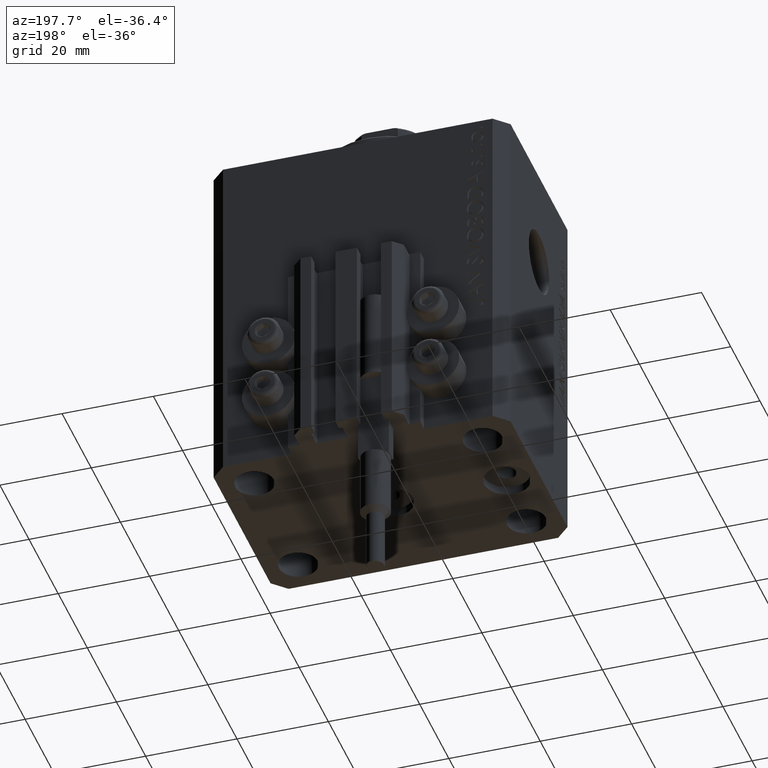
[diagram: clean part render]
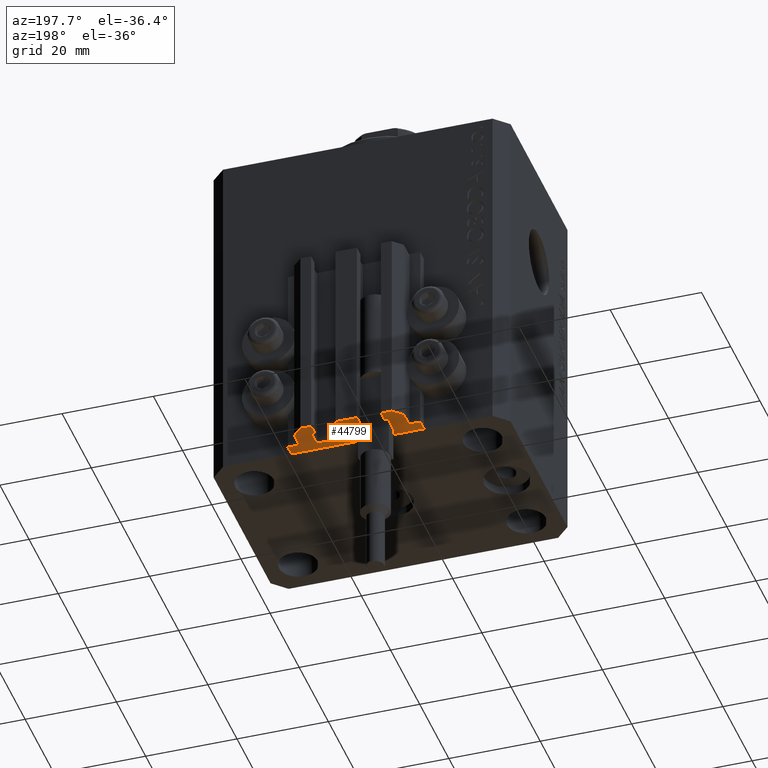
[diagram: same view with one face highlighted and labeled with its STEP entity id]
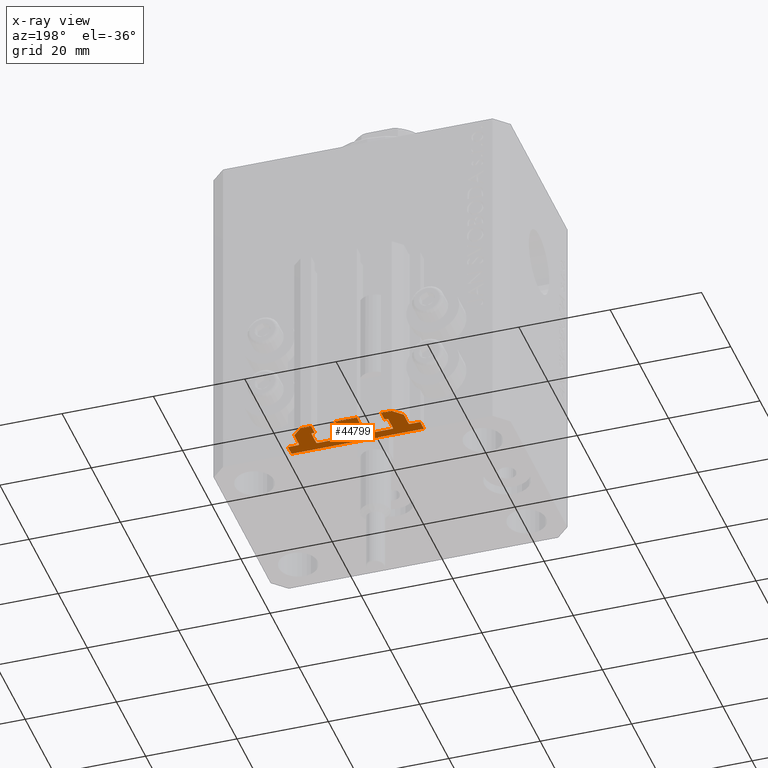
[diagram: x-ray of the same camera — body ghosted, the highlighted face saturated]
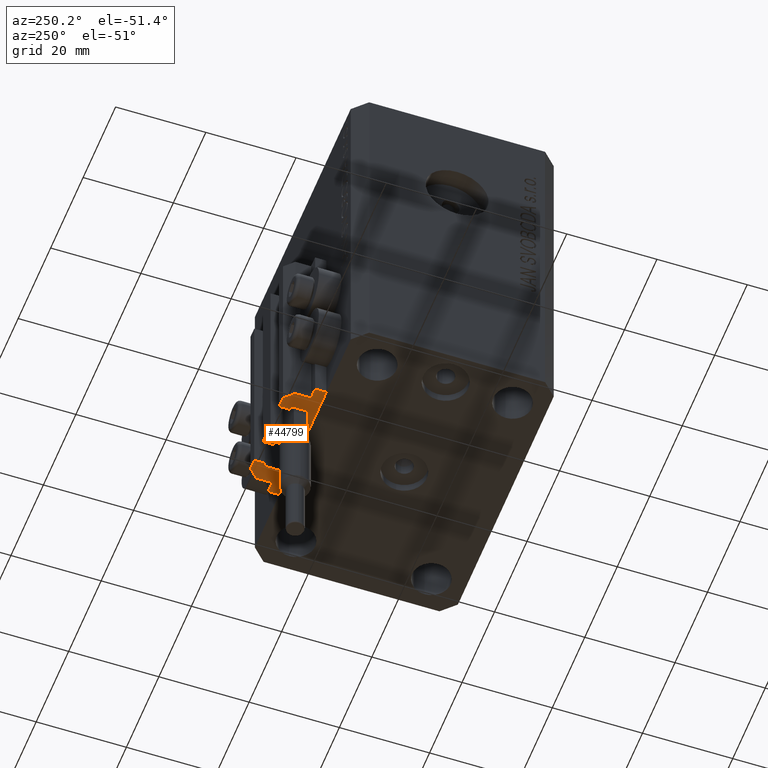
[diagram: same view with one face highlighted and labeled with its STEP entity id]
A machine part, auxiliary view. The second image highlights one B-rep face of the part: STEP entity #44799.
The next image is the same camera in x-ray: the body ghosted, the highlighted face saturated — about 0% of this face is hidden behind the body in this view.
A second angle (auxiliary view) of the same face is appended — the face is thin or edge-on in the first view.
In plain terms, the highlighted planar face has unit normal (0, 0, 1).
Its self-contained STEP definition (entity closure, byte-faithful):
#569 = ORIENTED_EDGE ( 'NONE', *, *, #10904, .F. ) ;
#761 = DIRECTION ( 'NONE',  ( 0.000000000000000000, 1.000000000000000000, 0.000000000000000000 ) ) ;
#1053 = VERTEX_POINT ( 'NONE', #47418 ) ;
#1470 = CARTESIAN_POINT ( 'NONE',  ( -7.650000000000000355, 30.49999999999948486, -77.00000000000000000 ) ) ;
#1555 = ORIENTED_EDGE ( 'NONE', *, *, #3538, .F. ) ;
#1664 = DIRECTION ( 'NONE',  ( 0.000000000000000000, 0.000000000000000000, 1.000000000000000000 ) ) ;
#1700 = DIRECTION ( 'NONE',  ( 1.000000000000000000, 0.000000000000000000, 0.000000000000000000 ) ) ;
#1826 = VERTEX_POINT ( 'NONE', #32672 ) ;
#1831 = LINE ( 'NONE', #28430, #33499 ) ;
#1833 = LINE ( 'NONE', #38700, #35772 ) ;
#1890 = VERTEX_POINT ( 'NONE', #14334 ) ;
#2008 = DIRECTION ( 'NONE',  ( 1.000000000000000000, 0.000000000000000000, 0.000000000000000000 ) ) ;
#2083 = CARTESIAN_POINT ( 'NONE',  ( 8.200000000000001066, 24.49999999999949196, -77.00000000000000000 ) ) ;
#2554 = VECTOR ( 'NONE', #16514, 1000.000000000000000 ) ;
#2609 = CARTESIAN_POINT ( 'NONE',  ( 7.649999999999995914, 28.09999999999950404, -77.00000000000000000 ) ) ;
#2802 = VERTEX_POINT ( 'NONE', #35378 ) ;
#2905 = CIRCLE ( 'NONE', #35664, 0.1999999999999994282 ) ;
#3199 = EDGE_CURVE ( 'NONE', #41428, #42121, #28231, .T. ) ;
#3223 = VECTOR ( 'NONE', #34340, 1000.000000000000000 ) ;
#3253 = LINE ( 'NONE', #7649, #24905 ) ;
#3466 = CARTESIAN_POINT ( 'NONE',  ( -1.600000000000000533, 27.89999999999950120, -77.00000000000000000 ) ) ;
#3538 = EDGE_CURVE ( 'NONE', #17357, #43377, #42797, .T. ) ;
#3565 = VECTOR ( 'NONE', #9985, 1000.000000000000000 ) ;
#3675 = CARTESIAN_POINT ( 'NONE',  ( -14.50000000000000000, 22.49999999999949907, -77.00000000000000000 ) ) ;
#3790 = DIRECTION ( 'NONE',  ( -1.000000000000000000, 0.000000000000000000, 0.000000000000000000 ) ) ;
#3873 = EDGE_CURVE ( 'NONE', #3904, #43377, #27635, .T. ) ;
#3904 = VERTEX_POINT ( 'NONE', #31258 ) ;
#3962 = CARTESIAN_POINT ( 'NONE',  ( -8.399999999999998579, 24.69999999999949480, -77.00000000000000000 ) ) ;
#4094 = VECTOR ( 'NONE', #37602, 1000.000000000000000 ) ;
#4220 = CIRCLE ( 'NONE', #10444, 0.1999999999999987899 ) ;
#4247 = CARTESIAN_POINT ( 'NONE',  ( -1.800000000000000933, 24.49999999999949551, -77.00000000000000000 ) ) ;
#4640 = LINE ( 'NONE', #8544, #4094 ) ;
#4773 = LINE ( 'NONE', #19889, #23924 ) ;
#5166 = ORIENTED_EDGE ( 'NONE', *, *, #11910, .T. ) ;
#5237 = CARTESIAN_POINT ( 'NONE',  ( 1.600000000000000533, 24.69999999999949480, -77.00000000000000000 ) ) ;
#5685 = CIRCLE ( 'NONE', #25186, 0.1999999999999987899 ) ;
#5976 = CARTESIAN_POINT ( 'NONE',  ( -1.600000000000003197, 27.89999999999950120, -77.00000000000000000 ) ) ;
#6010 = DIRECTION ( 'NONE',  ( 0.000000000000000000, 1.000000000000000000, 0.000000000000000000 ) ) ;
#6064 = VERTEX_POINT ( 'NONE', #37822 ) ;
#6265 = ORIENTED_EDGE ( 'NONE', *, *, #33480, .F. ) ;
#6410 = VERTEX_POINT ( 'NONE', #7983 ) ;
#6447 = VERTEX_POINT ( 'NONE', #2083 ) ;
#6482 = CARTESIAN_POINT ( 'NONE',  ( 2.349999999999999645, 28.09999999999950049, -77.00000000000000000 ) ) ;
#6522 = VECTOR ( 'NONE', #20786, 1000.000000000000000 ) ;
#6620 = CARTESIAN_POINT ( 'NONE',  ( 1.800000000000000933, 24.49999999999949196, -77.00000000000000000 ) ) ;
#7203 = LINE ( 'NONE', #15500, #39534 ) ;
#7294 = ORIENTED_EDGE ( 'NONE', *, *, #31642, .F. ) ;
#7354 = VECTOR ( 'NONE', #46453, 1000.000000000000000 ) ;
#7649 = CARTESIAN_POINT ( 'NONE',  ( 9.999999999999994671, 30.49999999999949551, -77.00000000000000000 ) ) ;
#7978 = VECTOR ( 'NONE', #45122, 1000.000000000000000 ) ;
#7983 = CARTESIAN_POINT ( 'NONE',  ( 14.49999999999999645, 22.49999999999949907, -77.00000000000000000 ) ) ;
#8236 = EDGE_CURVE ( 'NONE', #41428, #23066, #16855, .T. ) ;
#8544 = CARTESIAN_POINT ( 'NONE',  ( -2.350000000000003197, 28.09999999999950049, -77.00000000000000000 ) ) ;
#8549 = ORIENTED_EDGE ( 'NONE', *, *, #46766, .F. ) ;
#8776 = VERTEX_POINT ( 'NONE', #12195 ) ;
#8823 = ORIENTED_EDGE ( 'NONE', *, *, #45343, .F. ) ;
#8950 = CARTESIAN_POINT ( 'NONE',  ( 8.400000000000000355, 27.89999999999950475, -77.00000000000000000 ) ) ;
#9064 = ORIENTED_EDGE ( 'NONE', *, *, #32771, .F. ) ;
#9142 = CARTESIAN_POINT ( 'NONE',  ( -2.350000000000003197, 30.49999999999949907, -77.00000000000000000 ) ) ;
#9211 = EDGE_CURVE ( 'NONE', #24638, #28526, #10154, .T. ) ;
#9574 = CARTESIAN_POINT ( 'NONE',  ( 1.800000000000000933, 24.69999999999949480, -77.00000000000000000 ) ) ;
#9582 = DIRECTION ( 'NONE',  ( 0.000000000000000000, 0.000000000000000000, 1.000000000000000000 ) ) ;
#9749 = ORIENTED_EDGE ( 'NONE', *, *, #19848, .F. ) ;
#9985 = DIRECTION ( 'NONE',  ( -1.000000000000000000, 1.476360405086644852E-15, 0.000000000000000000 ) ) ;
#10154 = LINE ( 'NONE', #6482, #23903 ) ;
#10180 = DIRECTION ( 'NONE',  ( 1.000000000000000000, 0.000000000000000000, 0.000000000000000000 ) ) ;
#10444 = AXIS2_PLACEMENT_3D ( 'NONE', #13836, #47008, #10180 ) ;
#10610 = DIRECTION ( 'NONE',  ( 0.000000000000000000, -1.000000000000000000, 0.000000000000000000 ) ) ;
#10644 = VERTEX_POINT ( 'NONE', #24703 ) ;
#10850 = ORIENTED_EDGE ( 'NONE', *, *, #23287, .T. ) ;
#10904 = EDGE_CURVE ( 'NONE', #8776, #39651, #7203, .T. ) ;
#10945 = CARTESIAN_POINT ( 'NONE',  ( -7.650000000000000355, 28.09999999999948628, -77.00000000000000000 ) ) ;
#11232 = VECTOR ( 'NONE', #10610, 1000.000000000000000 ) ;
#11343 = LINE ( 'NONE', #14508, #11232 ) ;
#11734 = LINE ( 'NONE', #37138, #33039 ) ;
#11768 = CARTESIAN_POINT ( 'NONE',  ( 7.649999999999995914, 28.09999999999950404, -77.00000000000000000 ) ) ;
#11910 = EDGE_CURVE ( 'NONE', #21519, #28526, #20353, .T. ) ;
#12195 = CARTESIAN_POINT ( 'NONE',  ( 14.49999999999999822, 24.99999999999950617, -77.00000000000000000 ) ) ;
#12714 = VERTEX_POINT ( 'NONE', #23568 ) ;
#13255 = DIRECTION ( 'NONE',  ( -1.000000000000000000, 0.000000000000000000, 0.000000000000000000 ) ) ;
#13501 = PLANE ( 'NONE',  #15302 ) ;
#13836 = CARTESIAN_POINT ( 'NONE',  ( -8.199999999999999289, 24.69999999999949480, -77.00000000000000000 ) ) ;
#13891 = CARTESIAN_POINT ( 'NONE',  ( -14.50000000000000000, 22.49999999999949907, -77.00000000000000000 ) ) ;
#14202 = ORIENTED_EDGE ( 'NONE', *, *, #45827, .F. ) ;
#14334 = CARTESIAN_POINT ( 'NONE',  ( -10.00000000000000000, 30.49999999999948841, -77.00000000000000000 ) ) ;
#14508 = CARTESIAN_POINT ( 'NONE',  ( -14.50000000000000000, 24.99999999999949196, -77.00000000000000000 ) ) ;
#14667 = DIRECTION ( 'NONE',  ( -1.000000000000000000, 0.000000000000000000, 0.000000000000000000 ) ) ;
#15302 = AXIS2_PLACEMENT_3D ( 'NONE', #16936, #35027, #28409 ) ;
#15428 = DIRECTION ( 'NONE',  ( 1.000000000000000000, 6.308085367188338373E-15, 0.000000000000000000 ) ) ;
#15500 = CARTESIAN_POINT ( 'NONE',  ( 14.49999999999999822, 24.99999999999950617, -77.00000000000000000 ) ) ;
#15712 = VERTEX_POINT ( 'NONE', #26340 ) ;
#15891 = DIRECTION ( 'NONE',  ( 0.000000000000000000, 0.000000000000000000, 1.000000000000000000 ) ) ;
#16232 = DIRECTION ( 'NONE',  ( 0.000000000000000000, -1.000000000000000000, 0.000000000000000000 ) ) ;
#16282 = CARTESIAN_POINT ( 'NONE',  ( -2.350000000000003197, 30.49999999999949907, -77.00000000000000000 ) ) ;
#16367 = EDGE_CURVE ( 'NONE', #19671, #40616, #3253, .T. ) ;
#16514 = DIRECTION ( 'NONE',  ( 0.000000000000000000, -1.000000000000000000, 0.000000000000000000 ) ) ;
#16855 = CIRCLE ( 'NONE', #29360, 0.1999999999999987899 ) ;
#16936 = CARTESIAN_POINT ( 'NONE',  ( 12.20000000000000284, 25.19999999999950546, -77.00000000000000000 ) ) ;
#17003 = CARTESIAN_POINT ( 'NONE',  ( -8.199999999999997513, 28.09999999999948628, -77.00000000000000000 ) ) ;
#17097 = CIRCLE ( 'NONE', #36576, 0.2000000000000016209 ) ;
#17132 = EDGE_CURVE ( 'NONE', #33437, #23066, #42160, .T. ) ;
#17357 = VERTEX_POINT ( 'NONE', #30442 ) ;
#17629 = DIRECTION ( 'NONE',  ( 0.000000000000000000, 0.000000000000000000, 1.000000000000000000 ) ) ;
#18068 = VERTEX_POINT ( 'NONE', #2609 ) ;
#18348 = DIRECTION ( 'NONE',  ( -6.776263578034385456E-17, -1.000000000000000000, 0.000000000000000000 ) ) ;
#18397 = VERTEX_POINT ( 'NONE', #5976 ) ;
#18409 = EDGE_CURVE ( 'NONE', #1053, #12714, #1833, .T. ) ;
#18628 = CARTESIAN_POINT ( 'NONE',  ( -1.800000000000000933, 24.69999999999949480, -77.00000000000000000 ) ) ;
#18691 = EDGE_CURVE ( 'NONE', #1053, #39651, #32650, .T. ) ;
#19246 = VECTOR ( 'NONE', #14667, 1000.000000000000000 ) ;
#19296 = LINE ( 'NONE', #34210, #38001 ) ;
#19372 = EDGE_CURVE ( 'NONE', #17357, #41832, #17097, .T. ) ;
#19671 = VERTEX_POINT ( 'NONE', #34567 ) ;
#19848 = EDGE_CURVE ( 'NONE', #28643, #21937, #1831, .T. ) ;
#19878 = DIRECTION ( 'NONE',  ( 1.000000000000000000, 0.000000000000000000, 0.000000000000000000 ) ) ;
#19889 = CARTESIAN_POINT ( 'NONE',  ( -12.00000000000000000, 28.49999999999948841, -77.00000000000000000 ) ) ;
#20113 = LINE ( 'NONE', #35022, #44593 ) ;
#20190 = CARTESIAN_POINT ( 'NONE',  ( 8.200000000000001066, 24.49999999999949196, -77.00000000000000000 ) ) ;
#20353 = LINE ( 'NONE', #9142, #23222 ) ;
#20658 = ORIENTED_EDGE ( 'NONE', *, *, #29627, .F. ) ;
#20786 = DIRECTION ( 'NONE',  ( 6.938893903907212600E-16, 1.000000000000000000, 0.000000000000000000 ) ) ;
#20968 = LINE ( 'NONE', #1470, #3565 ) ;
#20980 = EDGE_CURVE ( 'NONE', #18397, #42741, #28159, .T. ) ;
#21113 = ORIENTED_EDGE ( 'NONE', *, *, #17132, .F. ) ;
#21470 = CARTESIAN_POINT ( 'NONE',  ( -8.399999999999996803, 27.89999999999948699, -77.00000000000000000 ) ) ;
#21519 = VERTEX_POINT ( 'NONE', #44329 ) ;
#21546 = ORIENTED_EDGE ( 'NONE', *, *, #29231, .F. ) ;
#21558 = CARTESIAN_POINT ( 'NONE',  ( 8.200000000000001066, 28.09999999999950759, -77.00000000000000000 ) ) ;
#21767 = CARTESIAN_POINT ( 'NONE',  ( -2.350000000000003197, 28.09999999999950049, -77.00000000000000000 ) ) ;
#21937 = VERTEX_POINT ( 'NONE', #41801 ) ;
#21946 = ORIENTED_EDGE ( 'NONE', *, *, #3873, .T. ) ;
#22089 = EDGE_CURVE ( 'NONE', #1890, #2802, #11734, .T. ) ;
#22165 = AXIS2_PLACEMENT_3D ( 'NONE', #43407, #31491, #1700 ) ;
#22313 = DIRECTION ( 'NONE',  ( 0.000000000000000000, 0.000000000000000000, 1.000000000000000000 ) ) ;
#22888 = DIRECTION ( 'NONE',  ( 0.000000000000000000, 0.000000000000000000, 1.000000000000000000 ) ) ;
#22943 = LINE ( 'NONE', #38711, #7978 ) ;
#23066 = VERTEX_POINT ( 'NONE', #21470 ) ;
#23222 = VECTOR ( 'NONE', #19878, 1000.000000000000000 ) ;
#23287 = EDGE_CURVE ( 'NONE', #33437, #15712, #4220, .T. ) ;
#23351 = LINE ( 'NONE', #26767, #3223 ) ;
#23411 = CARTESIAN_POINT ( 'NONE',  ( 8.200000000000001066, 27.89999999999950475, -77.00000000000000000 ) ) ;
#23568 = CARTESIAN_POINT ( 'NONE',  ( 12.00000000000000178, 28.49999999999950973, -77.00000000000000000 ) ) ;
#23588 = VERTEX_POINT ( 'NONE', #4247 ) ;
#23689 = VECTOR ( 'NONE', #38799, 1000.000000000000000 ) ;
#23698 = CARTESIAN_POINT ( 'NONE',  ( -12.20000000000000107, 24.99999999999948841, -77.00000000000000000 ) ) ;
#23787 = ORIENTED_EDGE ( 'NONE', *, *, #8236, .T. ) ;
#23903 = VECTOR ( 'NONE', #6010, 1000.000000000000000 ) ;
#23924 = VECTOR ( 'NONE', #16232, 1000.000000000000000 ) ;
#23954 = DIRECTION ( 'NONE',  ( 1.000000000000000000, 0.000000000000000000, 0.000000000000000000 ) ) ;
#24007 = ORIENTED_EDGE ( 'NONE', *, *, #22089, .F. ) ;
#24471 = DIRECTION ( 'NONE',  ( 1.000000000000000000, 0.000000000000000000, 0.000000000000000000 ) ) ;
#24523 = DIRECTION ( 'NONE',  ( 0.000000000000000000, 1.000000000000000000, 0.000000000000000000 ) ) ;
#24638 = VERTEX_POINT ( 'NONE', #33329 ) ;
#24703 = CARTESIAN_POINT ( 'NONE',  ( -1.600000000000000755, 24.69999999999949480, -77.00000000000000000 ) ) ;
#24905 = VECTOR ( 'NONE', #47652, 1000.000000000000000 ) ;
#24910 = DIRECTION ( 'NONE',  ( 0.000000000000000000, 0.000000000000000000, 1.000000000000000000 ) ) ;
#25161 = ORIENTED_EDGE ( 'NONE', *, *, #28004, .F. ) ;
#25186 = AXIS2_PLACEMENT_3D ( 'NONE', #32006, #24910, #23954 ) ;
#25799 = VERTEX_POINT ( 'NONE', #21558 ) ;
#26304 = ORIENTED_EDGE ( 'NONE', *, *, #26581, .T. ) ;
#26340 = CARTESIAN_POINT ( 'NONE',  ( -8.199999999999999289, 24.49999999999949551, -77.00000000000000000 ) ) ;
#26581 = EDGE_CURVE ( 'NONE', #28643, #1826, #42889, .T. ) ;
#26767 = CARTESIAN_POINT ( 'NONE',  ( 1.800000000000000933, 28.09999999999949694, -77.00000000000000000 ) ) ;
#26797 = CARTESIAN_POINT ( 'NONE',  ( -8.199999999999997513, 28.09999999999948628, -77.00000000000000000 ) ) ;
#27101 = LINE ( 'NONE', #34916, #23689 ) ;
#27635 = CIRCLE ( 'NONE', #22165, 0.1999999999999981515 ) ;
#27962 = ORIENTED_EDGE ( 'NONE', *, *, #39223, .F. ) ;
#27992 = LINE ( 'NONE', #16282, #2554 ) ;
#28004 = EDGE_CURVE ( 'NONE', #31290, #6410, #32937, .T. ) ;
#28126 = CARTESIAN_POINT ( 'NONE',  ( 14.49999999999999645, 22.49999999999949907, -77.00000000000000000 ) ) ;
#28159 = CIRCLE ( 'NONE', #41416, 0.1999999999999979294 ) ;
#28231 = LINE ( 'NONE', #17003, #43289 ) ;
#28409 = DIRECTION ( 'NONE',  ( 1.000000000000000000, 0.000000000000000000, -0.000000000000000000 ) ) ;
#28430 = CARTESIAN_POINT ( 'NONE',  ( -12.20000000000000107, 24.99999999999948841, -77.00000000000000000 ) ) ;
#28526 = VERTEX_POINT ( 'NONE', #42114 ) ;
#28643 = VERTEX_POINT ( 'NONE', #23698 ) ;
#28716 = ORIENTED_EDGE ( 'NONE', *, *, #31383, .F. ) ;
#28764 = DIRECTION ( 'NONE',  ( -0.7071067811865507924, 0.7071067811865441310, 0.000000000000000000 ) ) ;
#28873 = CARTESIAN_POINT ( 'NONE',  ( 12.20000000000000284, 25.19999999999950546, -77.00000000000000000 ) ) ;
#28949 = VECTOR ( 'NONE', #43895, 1000.000000000000000 ) ;
#29231 = EDGE_CURVE ( 'NONE', #3904, #24638, #23351, .T. ) ;
#29249 = ORIENTED_EDGE ( 'NONE', *, *, #38638, .F. ) ;
#29360 = AXIS2_PLACEMENT_3D ( 'NONE', #38012, #22888, #41650 ) ;
#29627 = EDGE_CURVE ( 'NONE', #40616, #18068, #22943, .T. ) ;
#30098 = CARTESIAN_POINT ( 'NONE',  ( -12.20000000000000107, 25.19999999999949125, -77.00000000000000000 ) ) ;
#30305 = VECTOR ( 'NONE', #42633, 1000.000000000000000 ) ;
#30319 = DIRECTION ( 'NONE',  ( -0.7071067811865472397, -0.7071067811865479058, 0.000000000000000000 ) ) ;
#30442 = CARTESIAN_POINT ( 'NONE',  ( 1.599999999999999645, 24.69999999999949480, -77.00000000000000000 ) ) ;
#31101 = AXIS2_PLACEMENT_3D ( 'NONE', #28873, #17629, #32538 ) ;
#31258 = CARTESIAN_POINT ( 'NONE',  ( 1.800000000000000933, 28.09999999999950049, -77.00000000000000000 ) ) ;
#31290 = VERTEX_POINT ( 'NONE', #3675 ) ;
#31383 = EDGE_CURVE ( 'NONE', #46620, #42741, #4640, .T. ) ;
#31491 = DIRECTION ( 'NONE',  ( 0.000000000000000000, 0.000000000000000000, 1.000000000000000000 ) ) ;
#31492 = CIRCLE ( 'NONE', #35393, 0.2000000000000005107 ) ;
#31622 = DIRECTION ( 'NONE',  ( -1.000000000000000000, 1.508455196501571429E-15, 0.000000000000000000 ) ) ;
#31642 = EDGE_CURVE ( 'NONE', #21519, #46620, #27992, .T. ) ;
#32006 = CARTESIAN_POINT ( 'NONE',  ( 8.200000000000001066, 24.69999999999949125, -77.00000000000000000 ) ) ;
#32074 = FACE_OUTER_BOUND ( 'NONE', #46992, .T. ) ;
#32427 = EDGE_CURVE ( 'NONE', #6447, #33980, #5685, .T. ) ;
#32538 = DIRECTION ( 'NONE',  ( 1.000000000000000000, 0.000000000000000000, 0.000000000000000000 ) ) ;
#32644 = ORIENTED_EDGE ( 'NONE', *, *, #18409, .F. ) ;
#32650 = CIRCLE ( 'NONE', #31101, 0.1999999999999987899 ) ;
#32672 = CARTESIAN_POINT ( 'NONE',  ( -12.00000000000000000, 25.19999999999949125, -77.00000000000000000 ) ) ;
#32771 = EDGE_CURVE ( 'NONE', #12714, #19671, #33139, .T. ) ;
#32937 = LINE ( 'NONE', #13891, #28949 ) ;
#33039 = VECTOR ( 'NONE', #30319, 999.9999999999998863 ) ;
#33139 = LINE ( 'NONE', #39959, #44675 ) ;
#33329 = CARTESIAN_POINT ( 'NONE',  ( 2.349999999999999645, 28.09999999999950049, -77.00000000000000000 ) ) ;
#33437 = VERTEX_POINT ( 'NONE', #3962 ) ;
#33480 = EDGE_CURVE ( 'NONE', #18068, #25799, #45188, .T. ) ;
#33499 = VECTOR ( 'NONE', #31622, 1000.000000000000000 ) ;
#33980 = VERTEX_POINT ( 'NONE', #46741 ) ;
#34208 = EDGE_CURVE ( 'NONE', #23588, #15712, #20113, .T. ) ;
#34210 = CARTESIAN_POINT ( 'NONE',  ( -7.650000000000000355, 28.09999999999948628, -77.00000000000000000 ) ) ;
#34340 = DIRECTION ( 'NONE',  ( 1.000000000000000000, 6.308085367188405427E-15, 0.000000000000000000 ) ) ;
#34567 = CARTESIAN_POINT ( 'NONE',  ( 9.999999999999994671, 30.49999999999949551, -77.00000000000000000 ) ) ;
#34694 = EDGE_CURVE ( 'NONE', #39999, #33980, #27101, .T. ) ;
#34916 = CARTESIAN_POINT ( 'NONE',  ( 8.400000000000000355, 27.89999999999950475, -77.00000000000000000 ) ) ;
#35022 = CARTESIAN_POINT ( 'NONE',  ( -1.800000000000000933, 24.49999999999949551, -77.00000000000000000 ) ) ;
#35027 = DIRECTION ( 'NONE',  ( 0.000000000000000000, 0.000000000000000000, 1.000000000000000000 ) ) ;
#35238 = ORIENTED_EDGE ( 'NONE', *, *, #19372, .T. ) ;
#35270 = ORIENTED_EDGE ( 'NONE', *, *, #9211, .F. ) ;
#35378 = CARTESIAN_POINT ( 'NONE',  ( -12.00000000000000000, 28.49999999999948841, -77.00000000000000000 ) ) ;
#35393 = AXIS2_PLACEMENT_3D ( 'NONE', #23411, #1664, #38298 ) ;
#35459 = DIRECTION ( 'NONE',  ( 0.000000000000000000, 0.000000000000000000, 1.000000000000000000 ) ) ;
#35487 = CARTESIAN_POINT ( 'NONE',  ( 7.649999999999995026, 30.49999999999949196, -77.00000000000000000 ) ) ;
#35664 = AXIS2_PLACEMENT_3D ( 'NONE', #18628, #22313, #43528 ) ;
#35772 = VECTOR ( 'NONE', #24523, 1000.000000000000000 ) ;
#35851 = ORIENTED_EDGE ( 'NONE', *, *, #32427, .T. ) ;
#36576 = AXIS2_PLACEMENT_3D ( 'NONE', #9574, #35459, #2008 ) ;
#36913 = LINE ( 'NONE', #3466, #46296 ) ;
#37138 = CARTESIAN_POINT ( 'NONE',  ( -10.00000000000000000, 30.49999999999948841, -77.00000000000000000 ) ) ;
#37333 = EDGE_CURVE ( 'NONE', #6410, #8776, #46639, .T. ) ;
#37602 = DIRECTION ( 'NONE',  ( 1.000000000000000000, -6.308085367188365195E-15, 0.000000000000000000 ) ) ;
#37822 = CARTESIAN_POINT ( 'NONE',  ( -7.650000000000000355, 30.49999999999948486, -77.00000000000000000 ) ) ;
#38001 = VECTOR ( 'NONE', #761, 1000.000000000000000 ) ;
#38012 = CARTESIAN_POINT ( 'NONE',  ( -8.199999999999997513, 27.89999999999948699, -77.00000000000000000 ) ) ;
#38126 = DIRECTION ( 'NONE',  ( 1.000000000000000000, 0.000000000000000000, 0.000000000000000000 ) ) ;
#38158 = EDGE_CURVE ( 'NONE', #39999, #25799, #31492, .T. ) ;
#38294 = ORIENTED_EDGE ( 'NONE', *, *, #37333, .F. ) ;
#38298 = DIRECTION ( 'NONE',  ( 1.000000000000000000, 0.000000000000000000, 0.000000000000000000 ) ) ;
#38638 = EDGE_CURVE ( 'NONE', #18397, #10644, #36913, .T. ) ;
#38700 = CARTESIAN_POINT ( 'NONE',  ( 12.00000000000000178, 25.19999999999951257, -77.00000000000000000 ) ) ;
#38706 = ORIENTED_EDGE ( 'NONE', *, *, #20980, .T. ) ;
#38711 = CARTESIAN_POINT ( 'NONE',  ( 7.649999999999995026, 30.49999999999949196, -77.00000000000000000 ) ) ;
#38799 = DIRECTION ( 'NONE',  ( -5.421010862427496532E-16, -1.000000000000000000, 0.000000000000000000 ) ) ;
#39223 = EDGE_CURVE ( 'NONE', #21937, #31290, #11343, .T. ) ;
#39418 = ORIENTED_EDGE ( 'NONE', *, *, #42054, .F. ) ;
#39507 = ORIENTED_EDGE ( 'NONE', *, *, #34208, .F. ) ;
#39534 = VECTOR ( 'NONE', #3790, 1000.000000000000000 ) ;
#39569 = LINE ( 'NONE', #20190, #19246 ) ;
#39651 = VERTEX_POINT ( 'NONE', #45603 ) ;
#39959 = CARTESIAN_POINT ( 'NONE',  ( 12.00000000000000178, 28.49999999999950973, -77.00000000000000000 ) ) ;
#39999 = VERTEX_POINT ( 'NONE', #8950 ) ;
#40616 = VERTEX_POINT ( 'NONE', #35487 ) ;
#40822 = ORIENTED_EDGE ( 'NONE', *, *, #38158, .T. ) ;
#41416 = AXIS2_PLACEMENT_3D ( 'NONE', #43000, #9582, #24471 ) ;
#41428 = VERTEX_POINT ( 'NONE', #26797 ) ;
#41650 = DIRECTION ( 'NONE',  ( 1.000000000000000000, 0.000000000000000000, 0.000000000000000000 ) ) ;
#41801 = CARTESIAN_POINT ( 'NONE',  ( -14.50000000000000000, 24.99999999999949196, -77.00000000000000000 ) ) ;
#41832 = VERTEX_POINT ( 'NONE', #6620 ) ;
#42054 = EDGE_CURVE ( 'NONE', #6064, #1890, #20968, .T. ) ;
#42114 = CARTESIAN_POINT ( 'NONE',  ( 2.349999999999999645, 30.49999999999949907, -77.00000000000000000 ) ) ;
#42115 = ORIENTED_EDGE ( 'NONE', *, *, #16367, .F. ) ;
#42121 = VERTEX_POINT ( 'NONE', #10945 ) ;
#42160 = LINE ( 'NONE', #42396, #30305 ) ;
#42396 = CARTESIAN_POINT ( 'NONE',  ( -8.400000000000000355, 24.69999999999949480, -77.00000000000000000 ) ) ;
#42633 = DIRECTION ( 'NONE',  ( 1.084202172485506406E-15, 1.000000000000000000, 0.000000000000000000 ) ) ;
#42741 = VERTEX_POINT ( 'NONE', #45874 ) ;
#42773 = ORIENTED_EDGE ( 'NONE', *, *, #34694, .F. ) ;
#42797 = LINE ( 'NONE', #5237, #7354 ) ;
#42889 = CIRCLE ( 'NONE', #45233, 0.2000000000000005107 ) ;
#43000 = CARTESIAN_POINT ( 'NONE',  ( -1.800000000000000933, 27.89999999999950120, -77.00000000000000000 ) ) ;
#43090 = DIRECTION ( 'NONE',  ( 1.000000000000000000, 0.000000000000000000, 0.000000000000000000 ) ) ;
#43289 = VECTOR ( 'NONE', #43090, 1000.000000000000000 ) ;
#43377 = VERTEX_POINT ( 'NONE', #47997 ) ;
#43407 = CARTESIAN_POINT ( 'NONE',  ( 1.800000000000000933, 27.89999999999950120, -77.00000000000000000 ) ) ;
#43477 = ORIENTED_EDGE ( 'NONE', *, *, #18691, .T. ) ;
#43528 = DIRECTION ( 'NONE',  ( 1.000000000000000000, 0.000000000000000000, 0.000000000000000000 ) ) ;
#43895 = DIRECTION ( 'NONE',  ( 1.000000000000000000, 0.000000000000000000, 0.000000000000000000 ) ) ;
#44329 = CARTESIAN_POINT ( 'NONE',  ( -2.350000000000003197, 30.49999999999949907, -77.00000000000000000 ) ) ;
#44593 = VECTOR ( 'NONE', #13255, 1000.000000000000000 ) ;
#44675 = VECTOR ( 'NONE', #28764, 1000.000000000000000 ) ;
#44799 = ADVANCED_FACE ( 'NONE', ( #32074 ), #13501, .F. ) ;
#45122 = DIRECTION ( 'NONE',  ( 3.614007241618365534E-16, -1.000000000000000000, 0.000000000000000000 ) ) ;
#45188 = LINE ( 'NONE', #11768, #46990 ) ;
#45233 = AXIS2_PLACEMENT_3D ( 'NONE', #30098, #15891, #38126 ) ;
#45343 = EDGE_CURVE ( 'NONE', #6447, #41832, #39569, .T. ) ;
#45603 = CARTESIAN_POINT ( 'NONE',  ( 12.20000000000000284, 24.99999999999950617, -77.00000000000000000 ) ) ;
#45630 = ORIENTED_EDGE ( 'NONE', *, *, #46367, .T. ) ;
#45827 = EDGE_CURVE ( 'NONE', #2802, #1826, #4773, .T. ) ;
#45874 = CARTESIAN_POINT ( 'NONE',  ( -1.800000000000000933, 28.09999999999949694, -77.00000000000000000 ) ) ;
#46296 = VECTOR ( 'NONE', #18348, 1000.000000000000000 ) ;
#46367 = EDGE_CURVE ( 'NONE', #23588, #10644, #2905, .T. ) ;
#46453 = DIRECTION ( 'NONE',  ( 0.000000000000000000, 1.000000000000000000, 0.000000000000000000 ) ) ;
#46620 = VERTEX_POINT ( 'NONE', #21767 ) ;
#46639 = LINE ( 'NONE', #28126, #6522 ) ;
#46741 = CARTESIAN_POINT ( 'NONE',  ( 8.400000000000000355, 24.69999999999949125, -77.00000000000000000 ) ) ;
#46766 = EDGE_CURVE ( 'NONE', #42121, #6064, #19296, .T. ) ;
#46990 = VECTOR ( 'NONE', #15428, 1000.000000000000000 ) ;
#46992 = EDGE_LOOP ( 'NONE', ( #27962, #9749, #26304, #14202, #24007, #39418, #8549, #47927, #23787, #21113, #10850, #39507, #45630, #29249, #38706, #28716, #7294, #5166, #35270, #21546, #21946, #1555, #35238, #8823, #35851, #42773, #40822, #6265, #20658, #42115, #9064, #32644, #43477, #569, #38294, #25161 ) ) ;
#47008 = DIRECTION ( 'NONE',  ( 0.000000000000000000, 0.000000000000000000, 1.000000000000000000 ) ) ;
#47418 = CARTESIAN_POINT ( 'NONE',  ( 12.00000000000000355, 25.19999999999951257, -77.00000000000000000 ) ) ;
#47652 = DIRECTION ( 'NONE',  ( -1.000000000000000000, -1.476360405086644852E-15, 0.000000000000000000 ) ) ;
#47927 = ORIENTED_EDGE ( 'NONE', *, *, #3199, .F. ) ;
#47997 = CARTESIAN_POINT ( 'NONE',  ( 1.600000000000000533, 27.89999999999950120, -77.00000000000000000 ) ) ;